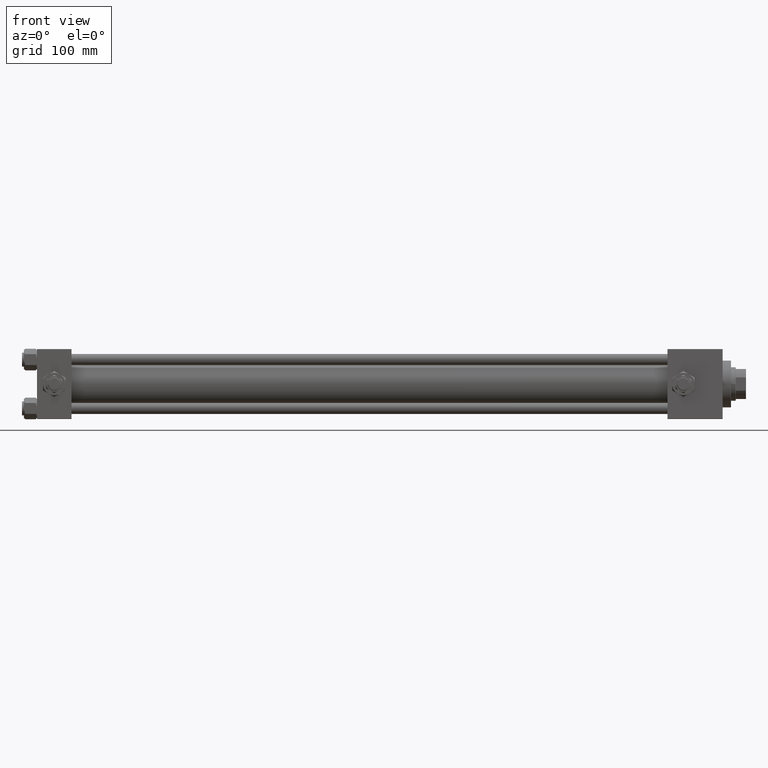
[diagram: clean part render]
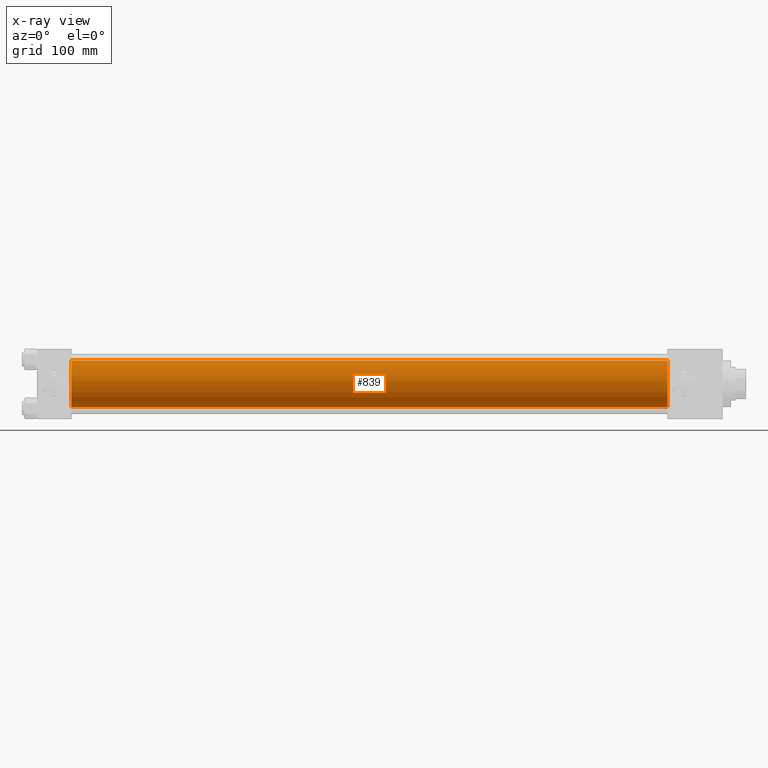
[diagram: x-ray — body ghosted, one internal face saturated and labeled with its STEP entity id]
A machine part, front view, then the same camera in x-ray: the body is ghosted and one INTERNAL B-rep face — a face not visible from any outside direction — is saturated and labeled: STEP entity #839.
In plain terms, the highlighted cylindrical surface (edge-blend (fillet) strip) has radius 25 mm, axis along (-1, -0, -0).
Its self-contained STEP definition (entity closure, byte-faithful):
#839 = ADVANCED_FACE ( 'NONE', ( #22337 ), #39047, .F. ) ;
#1639 = EDGE_CURVE ( 'NONE', #41584, #42415, #6967, .T. ) ;
#2719 = CARTESIAN_POINT ( 'NONE',  ( 675.0000000000000000, -2.602085213965210642E-15, 0.000000000000000000 ) ) ;
#2809 = ORIENTED_EDGE ( 'NONE', *, *, #43933, .F. ) ;
#2974 = CARTESIAN_POINT ( 'NONE',  ( 675.0000000000000000, -2.602085213965210642E-15, 25.00000000000000000 ) ) ;
#5169 = LINE ( 'NONE', #21332, #17053 ) ;
#6429 = EDGE_CURVE ( 'NONE', #41584, #17643, #19031, .T. ) ;
#6967 = LINE ( 'NONE', #35083, #18175 ) ;
#8631 = ORIENTED_EDGE ( 'NONE', *, *, #6429, .T. ) ;
#12751 = DIRECTION ( 'NONE',  ( 0.000000000000000000, 0.000000000000000000, -1.000000000000000000 ) ) ;
#14858 = CIRCLE ( 'NONE', #16574, 25.00000000000000000 ) ;
#16574 = AXIS2_PLACEMENT_3D ( 'NONE', #32914, #49081, #12751 ) ;
#17053 = VECTOR ( 'NONE', #41754, 1000.000000000000000 ) ;
#17643 = VERTEX_POINT ( 'NONE', #32890 ) ;
#18175 = VECTOR ( 'NONE', #51244, 1000.000000000000000 ) ;
#18737 = VERTEX_POINT ( 'NONE', #39653 ) ;
#19031 = CIRCLE ( 'NONE', #50351, 25.00000000000000000 ) ;
#19137 = ORIENTED_EDGE ( 'NONE', *, *, #20810, .T. ) ;
#20810 = EDGE_CURVE ( 'NONE', #17643, #18737, #5169, .T. ) ;
#21332 = CARTESIAN_POINT ( 'NONE',  ( 675.0000000000000000, 4.595317839031724996E-16, -25.00000000000000000 ) ) ;
#22337 = FACE_OUTER_BOUND ( 'NONE', #31284, .T. ) ;
#23701 = ORIENTED_EDGE ( 'NONE', *, *, #1639, .F. ) ;
#31284 = EDGE_LOOP ( 'NONE', ( #8631, #19137, #2809, #23701 ) ) ;
#32890 = CARTESIAN_POINT ( 'NONE',  ( 675.0000000000000000, 4.595317839031724996E-16, -25.00000000000000000 ) ) ;
#32914 = CARTESIAN_POINT ( 'NONE',  ( 37.00000000000000000, -2.602085213965210642E-15, 0.000000000000000000 ) ) ;
#33261 = DIRECTION ( 'NONE',  ( 1.000000000000000000, 0.000000000000000000, 0.000000000000000000 ) ) ;
#35083 = CARTESIAN_POINT ( 'NONE',  ( 675.0000000000000000, -2.602085213965210642E-15, 25.00000000000000000 ) ) ;
#35906 = AXIS2_PLACEMENT_3D ( 'NONE', #2719, #46222, #42251 ) ;
#39047 = CYLINDRICAL_SURFACE ( 'NONE', #35906, 25.00000000000000000 ) ;
#39653 = CARTESIAN_POINT ( 'NONE',  ( 37.00000000000000000, 4.595317839031724996E-16, -25.00000000000000000 ) ) ;
#41584 = VERTEX_POINT ( 'NONE', #2974 ) ;
#41754 = DIRECTION ( 'NONE',  ( -1.000000000000000000, -0.000000000000000000, -0.000000000000000000 ) ) ;
#42251 = DIRECTION ( 'NONE',  ( 0.000000000000000000, 0.000000000000000000, 1.000000000000000000 ) ) ;
#42343 = CARTESIAN_POINT ( 'NONE',  ( 37.00000000000000000, -2.602085213965210642E-15, 25.00000000000000000 ) ) ;
#42415 = VERTEX_POINT ( 'NONE', #42343 ) ;
#43933 = EDGE_CURVE ( 'NONE', #42415, #18737, #14858, .T. ) ;
#45719 = CARTESIAN_POINT ( 'NONE',  ( 675.0000000000000000, -2.602085213965210642E-15, 0.000000000000000000 ) ) ;
#46222 = DIRECTION ( 'NONE',  ( -1.000000000000000000, -0.000000000000000000, -0.000000000000000000 ) ) ;
#49081 = DIRECTION ( 'NONE',  ( 1.000000000000000000, 0.000000000000000000, 0.000000000000000000 ) ) ;
#49693 = DIRECTION ( 'NONE',  ( 0.000000000000000000, 0.000000000000000000, -1.000000000000000000 ) ) ;
#50351 = AXIS2_PLACEMENT_3D ( 'NONE', #45719, #33261, #49693 ) ;
#51244 = DIRECTION ( 'NONE',  ( -1.000000000000000000, -0.000000000000000000, -0.000000000000000000 ) ) ;